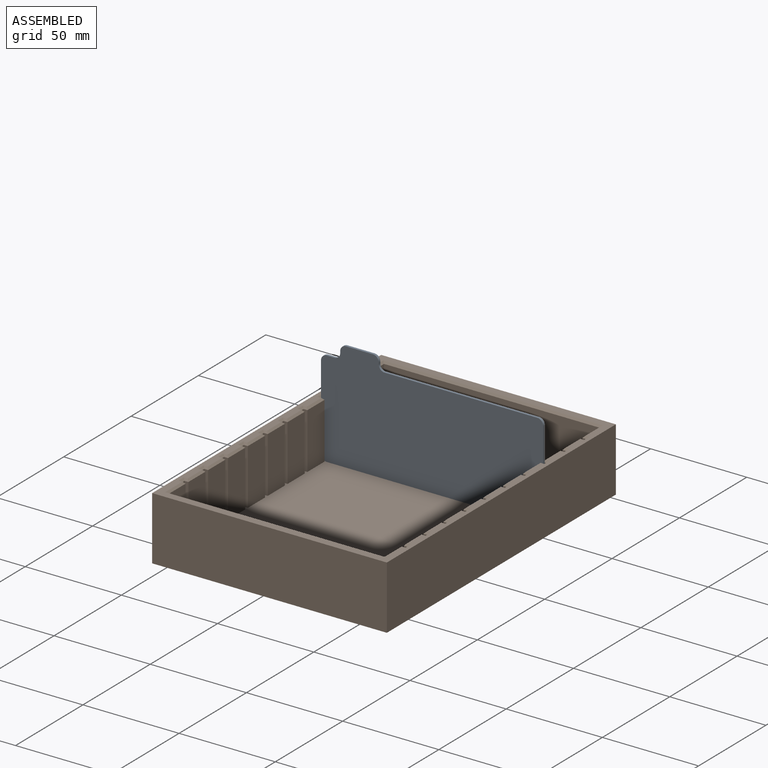
[diagram: assembled view]
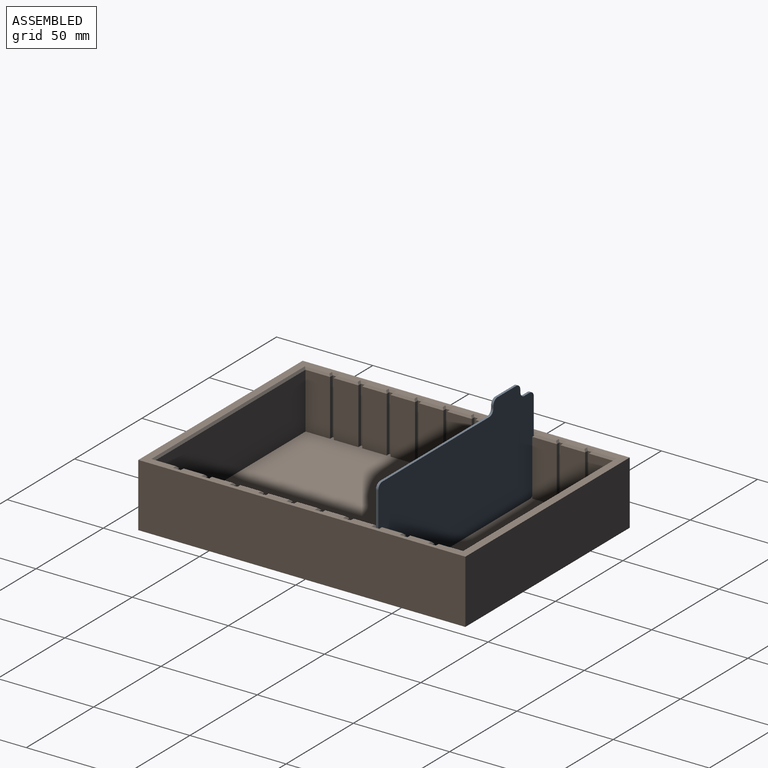
[diagram: assembled view, second angle]
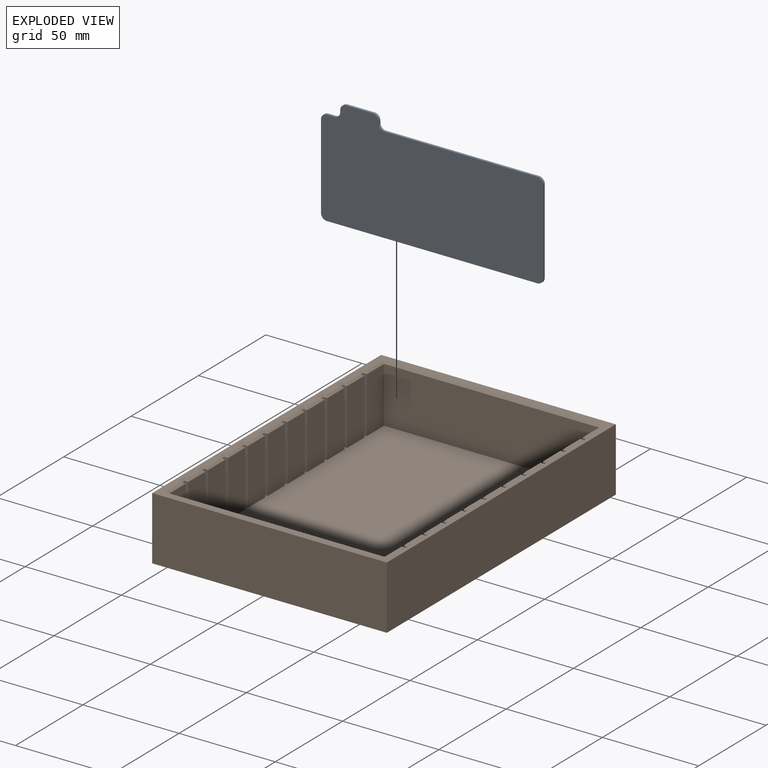
[diagram: exploded view]
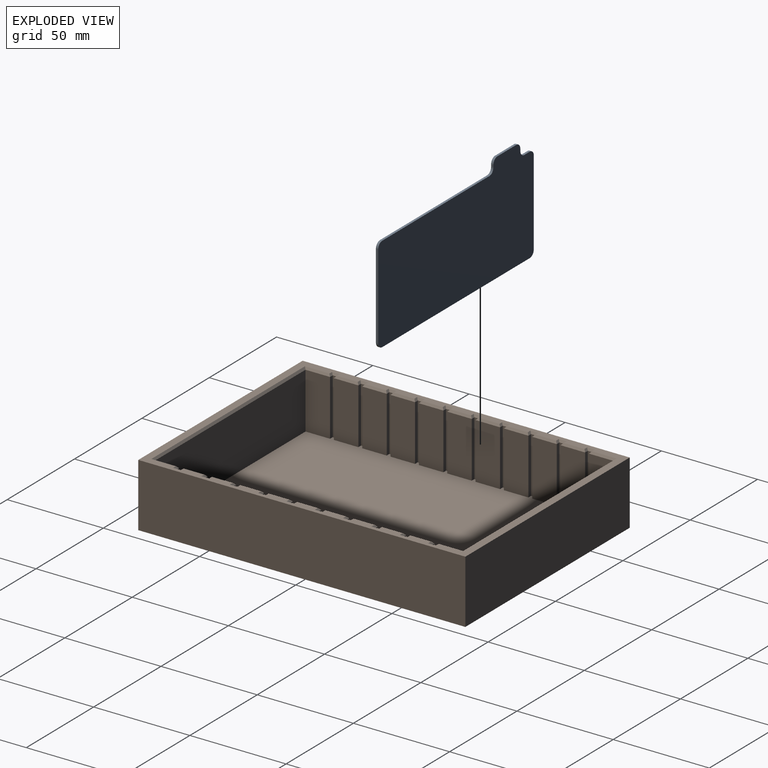
[diagram: exploded view, second angle]
ASSEMBLY  parts=2 mates=2
PART A: 18 faces, bbox 115.5x57x1.2 mm
  f0: plane 44x1.2mm, normal (-1,0,0), area 52.8mm2, adj f8,f9,f10,f15
  f1: plane 109.5x1.2mm, normal (0,-1,0), area 131.4mm2, adj f8,f9,f10,f11
  f2: plane 44x1.2mm, normal (1,0,0), area 52.8mm2, adj f8,f9,f11,f12
  f3: plane 79.5x1.2mm, normal (0,1,0), area 95.4mm2, adj f8,f9,f12,f13
  f4: plane 1.2x1mm, normal (1,0,0), area 1.2mm2, adj f8,f9,f13,f16
  f5: plane 14x1.2mm, normal (0,1,0), area 16.8mm2, adj f8,f9,f16,f17
  f6: plane 1.2x1mm, normal (-1,0,0), area 1.2mm2, adj f8,f9,f14,f17
  f7: plane 4x1.2mm, normal (0,1,0), area 4.8mm2, adj f8,f9,f14,f15
  f8: plane 115.5x57mm, normal (0,0,1), area 5907.3mm2, adj f0,f1,f2,f3,f4,f5,f6,f7
  f9: plane 115.5x57mm, normal (0,0,-1), area 5907.3mm2, adj f0,f1,f2,f3,f4,f5,f6,f7
  f10: cylinder r=3mm len=3mm, axis (0,0,-1), area 5.7mm2, adj f0,f1,f8,f9
  f11: cylinder r=3mm len=3mm, axis (0,0,-1), area 5.7mm2, adj f1,f2,f8,f9
  f12: cylinder r=3mm len=3mm, axis (0,0,-1), area 5.7mm2, adj f2,f3,f8,f9
  f13: cylinder r=3mm len=3mm, axis (0,0,1), area 5.7mm2, adj f3,f4,f8,f9
  f14: cylinder r=3mm len=3mm, axis (0,0,1), area 5.7mm2, adj f6,f7,f8,f9
  f15: cylinder r=3mm len=3mm, axis (0,0,-1), area 5.7mm2, adj f0,f7,f8,f9
  f16: cylinder r=3mm len=3mm, axis (0,0,-1), area 5.7mm2, adj f4,f5,f8,f9
  f17: cylinder r=3mm len=3mm, axis (0,0,-1), area 5.7mm2, adj f5,f6,f8,f9
PART B: 175 faces, bbox 122x170x33 mm
  f0: plane 170x33mm, normal (-1,0,0), area 5610mm2, adj f1,f3,f4,f89
  f1: plane 122x33mm, normal (0,-1,0), area 4026mm2, adj f0,f2,f4,f89
  f2: plane 170x33mm, normal (1,0,0), area 5610mm2, adj f1,f3,f4,f89
  f3: plane 122x33mm, normal (0,1,0), area 4026mm2, adj f0,f2,f4,f89
  f4: plane 170x122mm, normal (0,0,-1), area 20740mm2, adj f0,f1,f2,f3
  f5: plane 29x2mm, normal (1,0,0), area 58mm2, adj f6,f88,f90,f109
  f6: plane 29x2mm, normal (0,-1,0), area 58mm2, adj f5,f7,f90,f107
  f7: plane 29x12.73mm, normal (1,0,0), area 369.2mm2, adj f6,f8,f90,f105
  f8: plane 29x2mm, normal (0,1,0), area 58mm2, adj f7,f9,f90,f103
  f9: plane 29x2mm, normal (1,0,0), area 58mm2, adj f8,f10,f90,f101
  f10: plane 29x2mm, normal (0,-1,0), area 58mm2, adj f9,f11,f90,f99
  f11: plane 29x12.73mm, normal (1,0,0), area 369.2mm2, adj f10,f12,f90,f97
  f12: plane 29x2mm, normal (0,1,0), area 58mm2, adj f11,f13,f90,f95
  f13: plane 29x2mm, normal (1,0,0), area 58mm2, adj f12,f14,f90,f93
  f14: plane 29x2mm, normal (0,-1,0), area 58mm2, adj f13,f15,f90,f91
  f15: plane 29x12.7mm, normal (1,0,0), area 368.3mm2, adj f14,f16,f90,f92
  f16: plane 112x29mm, normal (0,-1,0), area 3248mm2, adj f15,f17,f90,f94
  f17: plane 29x12.7mm, normal (-1,0,0), area 368.3mm2, adj f16,f18,f90,f96
  f18: plane 29x2mm, normal (0,-1,0), area 58mm2, adj f17,f19,f90,f98
  f19: plane 29x2mm, normal (-1,0,0), area 58mm2, adj f18,f20,f90,f100
  f20: plane 29x2mm, normal (0,1,0), area 58mm2, adj f19,f21,f90,f102
  f21: plane 29x12.73mm, normal (-1,0,0), area 369.2mm2, adj f20,f22,f90,f104
  f22: plane 29x2mm, normal (0,-1,0), area 58mm2, adj f21,f23,f90,f106
  f23: plane 29x2mm, normal (-1,0,0), area 58mm2, adj f22,f24,f90,f108
  f24: plane 29x2mm, normal (0,1,0), area 58mm2, adj f23,f25,f90,f110
  f25: plane 29x12.73mm, normal (-1,0,0), area 369.2mm2, adj f24,f26,f90,f112
  f26: plane 29x2mm, normal (0,-1,0), area 58mm2, adj f25,f27,f90,f114
  f27: plane 29x2mm, normal (-1,0,0), area 58mm2, adj f26,f28,f90,f116
  f28: plane 29x2mm, normal (0,1,0), area 58mm2, adj f27,f29,f90,f118
  f29: plane 29x12.73mm, normal (-1,0,0), area 369.2mm2, adj f28,f30,f90,f120
  f30: plane 29x2mm, normal (0,-1,0), area 58mm2, adj f29,f31,f90,f122
  f31: plane 29x2mm, normal (-1,0,0), area 58mm2, adj f30,f32,f90,f124
  f32: plane 29x2mm, normal (0,1,0), area 58mm2, adj f31,f33,f90,f126
  f33: plane 29x12.73mm, normal (-1,0,0), area 369.2mm2, adj f32,f34,f90,f128
  f34: plane 29x2mm, normal (0,-1,0), area 58mm2, adj f33,f35,f90,f130
  f35: plane 29x2mm, normal (-1,0,0), area 58mm2, adj f34,f36,f90,f132
  f36: plane 29x2mm, normal (0,1,0), area 58mm2, adj f35,f37,f90,f134
  f37: plane 29x12.73mm, normal (-1,0,0), area 369.2mm2, adj f36,f38,f90,f136
  f38: plane 29x2mm, normal (0,-1,0), area 58mm2, adj f37,f39,f90,f138
  f39: plane 29x2mm, normal (-1,0,0), area 58mm2, adj f38,f40,f90,f140
  f40: plane 29x2mm, normal (0,1,0), area 58mm2, adj f39,f41,f90,f142
  f41: plane 29x12.73mm, normal (-1,0,0), area 369.2mm2, adj f40,f42,f90,f144
  f42: plane 29x2mm, normal (0,-1,0), area 58mm2, adj f41,f43,f90,f146
  f43: plane 29x2mm, normal (-1,0,0), area 58mm2, adj f42,f44,f90,f148
  f44: plane 29x2mm, normal (0,1,0), area 58mm2, adj f43,f45,f90,f150
  f45: plane 29x12.73mm, normal (-1,0,0), area 369.2mm2, adj f44,f46,f90,f152
  f46: plane 29x2mm, normal (0,-1,0), area 58mm2, adj f45,f47,f90,f154
  f47: plane 29x2mm, normal (-1,0,0), area 58mm2, adj f46,f48,f90,f156
  f48: plane 29x2mm, normal (0,1,0), area 58mm2, adj f47,f49,f90,f158
  f49: plane 29x12.73mm, normal (-1,0,0), area 369.2mm2, adj f48,f50,f90,f160
  f50: plane 29x2mm, normal (0,-1,0), area 58mm2, adj f49,f51,f90,f162
  f51: plane 29x2mm, normal (-1,0,0), area 58mm2, adj f50,f52,f90,f164
  f52: plane 29x2mm, normal (0,1,0), area 58mm2, adj f51,f53,f90,f166
  f53: plane 29x12.73mm, normal (-1,0,0), area 369.2mm2, adj f52,f54,f90,f168
  f54: plane 29x2mm, normal (0,-1,0), area 58mm2, adj f53,f55,f90,f170
  f55: plane 29x2mm, normal (-1,0,0), area 58mm2, adj f54,f56,f90,f172
  f56: plane 29x2mm, normal (0,1,0), area 58mm2, adj f55,f57,f90,f174
  f57: plane 29x12.73mm, normal (-1,0,0), area 369.2mm2, adj f56,f58,f90,f173
  f58: plane 112x29mm, normal (0,1,0), area 3248mm2, adj f57,f59,f90,f171
  f59: plane 29x12.73mm, normal (1,0,0), area 369.2mm2, adj f58,f60,f90,f169
  f60: plane 29x2mm, normal (0,1,0), area 58mm2, adj f59,f61,f90,f167
  f61: plane 29x2mm, normal (1,0,0), area 58mm2, adj f60,f62,f90,f165
  f62: plane 29x2mm, normal (0,-1,0), area 58mm2, adj f61,f63,f90,f163
  f63: plane 29x12.73mm, normal (1,0,0), area 369.2mm2, adj f62,f64,f90,f161
  f64: plane 29x2mm, normal (0,1,0), area 58mm2, adj f63,f65,f90,f159
  f65: plane 29x2mm, normal (1,0,0), area 58mm2, adj f64,f66,f90,f157
  f66: plane 29x2mm, normal (0,-1,0), area 58mm2, adj f65,f67,f90,f155
  f67: plane 29x12.73mm, normal (1,0,0), area 369.2mm2, adj f66,f68,f90,f153
  f68: plane 29x2mm, normal (0,1,0), area 58mm2, adj f67,f69,f90,f151
  f69: plane 29x2mm, normal (1,0,0), area 58mm2, adj f68,f70,f90,f149
  f70: plane 29x2mm, normal (0,-1,0), area 58mm2, adj f69,f71,f90,f147
  f71: plane 29x12.73mm, normal (1,0,0), area 369.2mm2, adj f70,f72,f90,f145
  f72: plane 29x2mm, normal (0,1,0), area 58mm2, adj f71,f73,f90,f143
  f73: plane 29x2mm, normal (1,0,0), area 58mm2, adj f72,f74,f90,f141
  f74: plane 29x2mm, normal (0,-1,0), area 58mm2, adj f73,f75,f90,f139
  f75: plane 29x12.73mm, normal (1,0,0), area 369.2mm2, adj f74,f76,f90,f137
  f76: plane 29x2mm, normal (0,1,0), area 58mm2, adj f75,f77,f90,f135
  f77: plane 29x2mm, normal (1,0,0), area 58mm2, adj f76,f78,f90,f133
  f78: plane 29x2mm, normal (0,-1,0), area 58mm2, adj f77,f79,f90,f131
  f79: plane 29x12.73mm, normal (1,0,0), area 369.2mm2, adj f78,f80,f90,f129
  f80: plane 29x2mm, normal (0,1,0), area 58mm2, adj f79,f81,f90,f127
  f81: plane 29x2mm, normal (1,0,0), area 58mm2, adj f80,f82,f90,f125
  f82: plane 29x2mm, normal (0,-1,0), area 58mm2, adj f81,f83,f90,f123
  f83: plane 29x12.73mm, normal (1,0,0), area 369.2mm2, adj f82,f84,f90,f121
  f84: plane 29x2mm, normal (0,1,0), area 58mm2, adj f83,f85,f90,f119
  f85: plane 29x2mm, normal (1,0,0), area 58mm2, adj f84,f86,f90,f117
  f86: plane 29x2mm, normal (0,-1,0), area 58mm2, adj f85,f87,f90,f115
  f87: plane 29x12.73mm, normal (1,0,0), area 369.2mm2, adj f86,f88,f90,f113
  f88: plane 29x2mm, normal (0,1,0), area 58mm2, adj f5,f87,f90,f111
  f89: plane 170x122mm, normal (0,0,1), area 2112mm2, adj f0,f1,f2,f3,f91,f92,f93,f94
  f90: plane 160x116mm, normal (0,0,1), area 18000mm2, adj f5,f6,f7,f8,f9,f10,f11,f12
  f91: plane 3x1mm, normal (0,-0.71,0.71), area 2.8mm2, adj f14,f89,f92,f93
  f92: plane 13.7x1mm, normal (0.71,0,0.71), area 18mm2, adj f15,f89,f91,f94
  f93: plane 4x1mm, normal (0.71,0,0.71), area 4.2mm2, adj f13,f89,f91,f95
  f94: plane 114x1mm, normal (0,-0.71,0.71), area 159.8mm2, adj f16,f89,f92,f96
  f95: plane 3x1mm, normal (0,0.71,0.71), area 2.8mm2, adj f12,f89,f93,f97
  f96: plane 13.7x1mm, normal (-0.71,0,0.71), area 18mm2, adj f17,f89,f94,f98
  f97: plane 12.73x1mm, normal (0.71,0,0.71), area 16.6mm2, adj f11,f89,f95,f99
  f98: plane 3x1mm, normal (0,-0.71,0.71), area 2.8mm2, adj f18,f89,f96,f100
  f99: plane 3x1mm, normal (0,-0.71,0.71), area 2.8mm2, adj f10,f89,f97,f101
  f100: plane 4x1mm, normal (-0.71,0,0.71), area 4.2mm2, adj f19,f89,f98,f102
  f101: plane 4x1mm, normal (0.71,0,0.71), area 4.2mm2, adj f9,f89,f99,f103
  f102: plane 3x1mm, normal (0,0.71,0.71), area 2.8mm2, adj f20,f89,f100,f104
  f103: plane 3x1mm, normal (0,0.71,0.71), area 2.8mm2, adj f8,f89,f101,f105
  f104: plane 12.73x1mm, normal (-0.71,0,0.71), area 16.6mm2, adj f21,f89,f102,f106
  f105: plane 12.73x1mm, normal (0.71,0,0.71), area 16.6mm2, adj f7,f89,f103,f107
  f106: plane 3x1mm, normal (0,-0.71,0.71), area 2.8mm2, adj f22,f89,f104,f108
  f107: plane 3x1mm, normal (0,-0.71,0.71), area 2.8mm2, adj f6,f89,f105,f109
  f108: plane 4x1mm, normal (-0.71,0,0.71), area 4.2mm2, adj f23,f89,f106,f110
  f109: plane 4x1mm, normal (0.71,0,0.71), area 4.2mm2, adj f5,f89,f107,f111
  f110: plane 3x1mm, normal (0,0.71,0.71), area 2.8mm2, adj f24,f89,f108,f112
  f111: plane 3x1mm, normal (0,0.71,0.71), area 2.8mm2, adj f88,f89,f109,f113
  f112: plane 12.73x1mm, normal (-0.71,0,0.71), area 16.6mm2, adj f25,f89,f110,f114
  f113: plane 12.73x1mm, normal (0.71,0,0.71), area 16.6mm2, adj f87,f89,f111,f115
  f114: plane 3x1mm, normal (0,-0.71,0.71), area 2.8mm2, adj f26,f89,f112,f116
  f115: plane 3x1mm, normal (0,-0.71,0.71), area 2.8mm2, adj f86,f89,f113,f117
  f116: plane 4x1mm, normal (-0.71,0,0.71), area 4.2mm2, adj f27,f89,f114,f118
  f117: plane 4x1mm, normal (0.71,0,0.71), area 4.2mm2, adj f85,f89,f115,f119
  f118: plane 3x1mm, normal (0,0.71,0.71), area 2.8mm2, adj f28,f89,f116,f120
  f119: plane 3x1mm, normal (0,0.71,0.71), area 2.8mm2, adj f84,f89,f117,f121
  f120: plane 12.73x1mm, normal (-0.71,0,0.71), area 16.6mm2, adj f29,f89,f118,f122
  f121: plane 12.73x1mm, normal (0.71,0,0.71), area 16.6mm2, adj f83,f89,f119,f123
  f122: plane 3x1mm, normal (0,-0.71,0.71), area 2.8mm2, adj f30,f89,f120,f124
  f123: plane 3x1mm, normal (0,-0.71,0.71), area 2.8mm2, adj f82,f89,f121,f125
  f124: plane 4x1mm, normal (-0.71,0,0.71), area 4.2mm2, adj f31,f89,f122,f126
  f125: plane 4x1mm, normal (0.71,0,0.71), area 4.2mm2, adj f81,f89,f123,f127
  f126: plane 3x1mm, normal (0,0.71,0.71), area 2.8mm2, adj f32,f89,f124,f128
  f127: plane 3x1mm, normal (0,0.71,0.71), area 2.8mm2, adj f80,f89,f125,f129
  f128: plane 12.73x1mm, normal (-0.71,0,0.71), area 16.6mm2, adj f33,f89,f126,f130
  f129: plane 12.73x1mm, normal (0.71,0,0.71), area 16.6mm2, adj f79,f89,f127,f131
  f130: plane 3x1mm, normal (0,-0.71,0.71), area 2.8mm2, adj f34,f89,f128,f132
  f131: plane 3x1mm, normal (0,-0.71,0.71), area 2.8mm2, adj f78,f89,f129,f133
  f132: plane 4x1mm, normal (-0.71,0,0.71), area 4.2mm2, adj f35,f89,f130,f134
  f133: plane 4x1mm, normal (0.71,0,0.71), area 4.2mm2, adj f77,f89,f131,f135
  f134: plane 3x1mm, normal (0,0.71,0.71), area 2.8mm2, adj f36,f89,f132,f136
  f135: plane 3x1mm, normal (0,0.71,0.71), area 2.8mm2, adj f76,f89,f133,f137
  f136: plane 12.73x1mm, normal (-0.71,0,0.71), area 16.6mm2, adj f37,f89,f134,f138
  f137: plane 12.73x1mm, normal (0.71,0,0.71), area 16.6mm2, adj f75,f89,f135,f139
  f138: plane 3x1mm, normal (0,-0.71,0.71), area 2.8mm2, adj f38,f89,f136,f140
  f139: plane 3x1mm, normal (0,-0.71,0.71), area 2.8mm2, adj f74,f89,f137,f141
  f140: plane 4x1mm, normal (-0.71,0,0.71), area 4.2mm2, adj f39,f89,f138,f142
  f141: plane 4x1mm, normal (0.71,0,0.71), area 4.2mm2, adj f73,f89,f139,f143
  f142: plane 3x1mm, normal (0,0.71,0.71), area 2.8mm2, adj f40,f89,f140,f144
  f143: plane 3x1mm, normal (0,0.71,0.71), area 2.8mm2, adj f72,f89,f141,f145
  f144: plane 12.73x1mm, normal (-0.71,0,0.71), area 16.6mm2, adj f41,f89,f142,f146
  f145: plane 12.73x1mm, normal (0.71,0,0.71), area 16.6mm2, adj f71,f89,f143,f147
  f146: plane 3x1mm, normal (0,-0.71,0.71), area 2.8mm2, adj f42,f89,f144,f148
  f147: plane 3x1mm, normal (0,-0.71,0.71), area 2.8mm2, adj f70,f89,f145,f149
  f148: plane 4x1mm, normal (-0.71,0,0.71), area 4.2mm2, adj f43,f89,f146,f150
  f149: plane 4x1mm, normal (0.71,0,0.71), area 4.2mm2, adj f69,f89,f147,f151
  f150: plane 3x1mm, normal (0,0.71,0.71), area 2.8mm2, adj f44,f89,f148,f152
  f151: plane 3x1mm, normal (0,0.71,0.71), area 2.8mm2, adj f68,f89,f149,f153
  f152: plane 12.73x1mm, normal (-0.71,0,0.71), area 16.6mm2, adj f45,f89,f150,f154
  f153: plane 12.73x1mm, normal (0.71,0,0.71), area 16.6mm2, adj f67,f89,f151,f155
  f154: plane 3x1mm, normal (0,-0.71,0.71), area 2.8mm2, adj f46,f89,f152,f156
  f155: plane 3x1mm, normal (0,-0.71,0.71), area 2.8mm2, adj f66,f89,f153,f157
  f156: plane 4x1mm, normal (-0.71,0,0.71), area 4.2mm2, adj f47,f89,f154,f158
  f157: plane 4x1mm, normal (0.71,0,0.71), area 4.2mm2, adj f65,f89,f155,f159
  f158: plane 3x1mm, normal (0,0.71,0.71), area 2.8mm2, adj f48,f89,f156,f160
  f159: plane 3x1mm, normal (0,0.71,0.71), area 2.8mm2, adj f64,f89,f157,f161
  f160: plane 12.73x1mm, normal (-0.71,0,0.71), area 16.6mm2, adj f49,f89,f158,f162
  f161: plane 12.73x1mm, normal (0.71,0,0.71), area 16.6mm2, adj f63,f89,f159,f163
  f162: plane 3x1mm, normal (0,-0.71,0.71), area 2.8mm2, adj f50,f89,f160,f164
  f163: plane 3x1mm, normal (0,-0.71,0.71), area 2.8mm2, adj f62,f89,f161,f165
  f164: plane 4x1mm, normal (-0.71,0,0.71), area 4.2mm2, adj f51,f89,f162,f166
  f165: plane 4x1mm, normal (0.71,0,0.71), area 4.2mm2, adj f61,f89,f163,f167
  f166: plane 3x1mm, normal (0,0.71,0.71), area 2.8mm2, adj f52,f89,f164,f168
  f167: plane 3x1mm, normal (0,0.71,0.71), area 2.8mm2, adj f60,f89,f165,f169
  f168: plane 12.73x1mm, normal (-0.71,0,0.71), area 16.6mm2, adj f53,f89,f166,f170
  f169: plane 13.73x1mm, normal (0.71,0,0.71), area 18mm2, adj f59,f89,f167,f171
  f170: plane 3x1mm, normal (0,-0.71,0.71), area 2.8mm2, adj f54,f89,f168,f172
  f171: plane 114x1mm, normal (0,0.71,0.71), area 159.8mm2, adj f58,f89,f169,f173
  f172: plane 4x1mm, normal (-0.71,0,0.71), area 4.2mm2, adj f55,f89,f170,f174
  f173: plane 13.73x1mm, normal (-0.71,0,0.71), area 18mm2, adj f57,f89,f171,f174
  f174: plane 3x1mm, normal (0,0.71,0.71), area 2.8mm2, adj f56,f89,f172,f173
PLACE A rot(axis=(1,0,0),90deg) t=(-5.07,85.21,12.59)mm
PLACE B t=(-8.07,-37.05,9.59)mm fixed
MATE planar B.f90 <-> A.f1  axis (0,0,1) through (52.93,47.95,12.59)mm
MATE planar B.f85 <-> A.f0  axis (1,0,0) through (-5.07,70.06,27.09)mm
